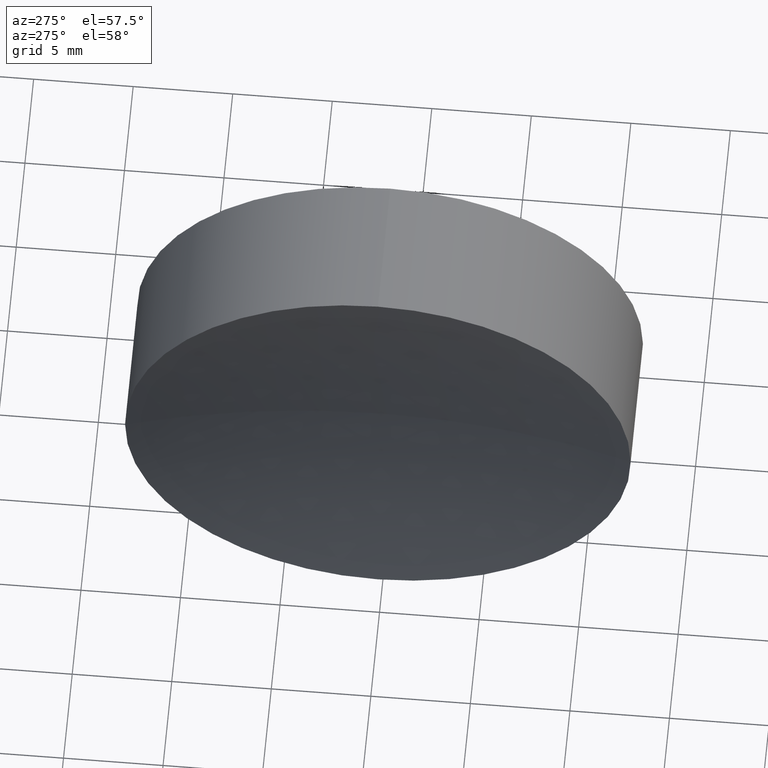
[diagram: clean part render]
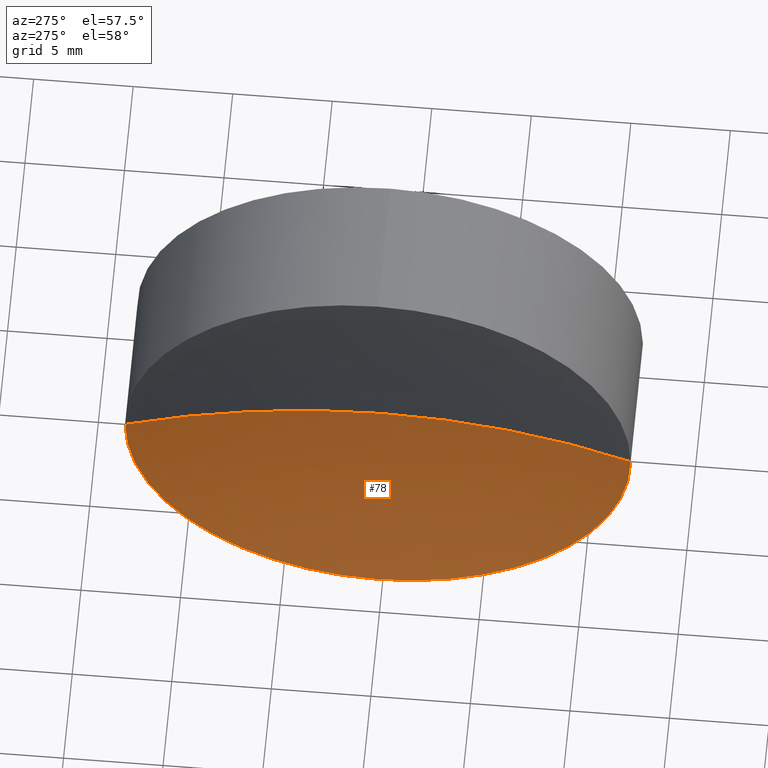
[diagram: same view with one face highlighted and labeled with its STEP entity id]
A machine part, auxiliary view. The second image highlights one B-rep face of the part: STEP entity #78.
In plain terms, the highlighted spherical surface has radius 46.6 mm.
Its self-contained STEP definition (entity closure, byte-faithful):
#3 = CARTESIAN_POINT ( 'NONE',  ( 118.3527034462293400, 65.22260287298738000, 0.0000000000000000000 ) ) ;
#10 = AXIS2_PLACEMENT_3D ( 'NONE', #69, #192, #208 ) ;
#16 = VERTEX_POINT ( 'NONE', #217 ) ;
#17 = CIRCLE ( 'NONE', #159, 12.69999999999997400 ) ;
#30 = VERTEX_POINT ( 'NONE', #177 ) ;
#32 = AXIS2_PLACEMENT_3D ( 'NONE', #165, #123, #163 ) ;
#60 = CIRCLE ( 'NONE', #10, 46.60000000000000100 ) ;
#66 = VERTEX_POINT ( 'NONE', #3 ) ;
#68 = SPHERICAL_SURFACE ( 'NONE', #32, 46.60000000000000100 ) ;
#69 = CARTESIAN_POINT ( 'NONE',  ( 71.75270344622933300, 65.22260287298738000, 0.0000000000000000000 ) ) ;
#78 = ADVANCED_FACE ( 'NONE', ( #90 ), #68, .F. ) ;
#81 = EDGE_CURVE ( 'NONE', #66, #30, #60, .T. ) ;
#90 = FACE_OUTER_BOUND ( 'NONE', #178, .T. ) ;
#99 = AXIS2_PLACEMENT_3D ( 'NONE', #153, #118, #155 ) ;
#100 = DIRECTION ( 'NONE',  ( -1.000000000000000000, -0.0000000000000000000, -0.0000000000000000000 ) ) ;
#113 = DIRECTION ( 'NONE',  ( 0.0000000000000000000, 1.224646799147353200E-016, -1.000000000000000000 ) ) ;
#115 = CIRCLE ( 'NONE', #99, 12.69999999999997400 ) ;
#118 = DIRECTION ( 'NONE',  ( -1.000000000000000000, -0.0000000000000000000, -0.0000000000000000000 ) ) ;
#121 = CIRCLE ( 'NONE', #150, 46.60000000000000100 ) ;
#123 = DIRECTION ( 'NONE',  ( 0.0000000000000000000, 0.0000000000000000000, -1.000000000000000000 ) ) ;
#128 = ORIENTED_EDGE ( 'NONE', *, *, #218, .T. ) ;
#137 = VERTEX_POINT ( 'NONE', #223 ) ;
#148 = CARTESIAN_POINT ( 'NONE',  ( 71.75270344622933300, 65.22260287298738000, 0.0000000000000000000 ) ) ;
#150 = AXIS2_PLACEMENT_3D ( 'NONE', #148, #113, #171 ) ;
#153 = CARTESIAN_POINT ( 'NONE',  ( 116.5887380612574700, 65.22260287298739500, 0.0000000000000000000 ) ) ;
#155 = DIRECTION ( 'NONE',  ( 0.0000000000000000000, 0.0000000000000000000, 1.000000000000000000 ) ) ;
#159 = AXIS2_PLACEMENT_3D ( 'NONE', #205, #100, #229 ) ;
#163 = DIRECTION ( 'NONE',  ( 0.0000000000000000000, 1.000000000000000000, 0.0000000000000000000 ) ) ;
#165 = CARTESIAN_POINT ( 'NONE',  ( 71.75270344622933300, 65.22260287298738000, 0.0000000000000000000 ) ) ;
#171 = DIRECTION ( 'NONE',  ( 0.0000000000000000000, 1.000000000000000000, 1.224646799147353200E-016 ) ) ;
#176 = ORIENTED_EDGE ( 'NONE', *, *, #196, .F. ) ;
#177 = CARTESIAN_POINT ( 'NONE',  ( 116.5887380612574700, 77.92260287298735500, 0.0000000000000000000 ) ) ;
#178 = EDGE_LOOP ( 'NONE', ( #176, #194, #128, #213 ) ) ;
#192 = DIRECTION ( 'NONE',  ( 0.0000000000000000000, 0.0000000000000000000, 1.000000000000000000 ) ) ;
#194 = ORIENTED_EDGE ( 'NONE', *, *, #81, .T. ) ;
#196 = EDGE_CURVE ( 'NONE', #66, #16, #121, .T. ) ;
#205 = CARTESIAN_POINT ( 'NONE',  ( 116.5887380612574700, 65.22260287298739500, 0.0000000000000000000 ) ) ;
#208 = DIRECTION ( 'NONE',  ( 1.000000000000000000, 0.0000000000000000000, 0.0000000000000000000 ) ) ;
#209 = EDGE_CURVE ( 'NONE', #137, #16, #17, .T. ) ;
#213 = ORIENTED_EDGE ( 'NONE', *, *, #209, .T. ) ;
#217 = CARTESIAN_POINT ( 'NONE',  ( 116.5887380612574700, 52.52260287298741300, -1.555301434917133900E-015 ) ) ;
#218 = EDGE_CURVE ( 'NONE', #30, #137, #115, .T. ) ;
#223 = CARTESIAN_POINT ( 'NONE',  ( 116.5887380612574700, 65.22260287298739500, -12.69999999999997400 ) ) ;
#229 = DIRECTION ( 'NONE',  ( 0.0000000000000000000, 0.0000000000000000000, 1.000000000000000000 ) ) ;